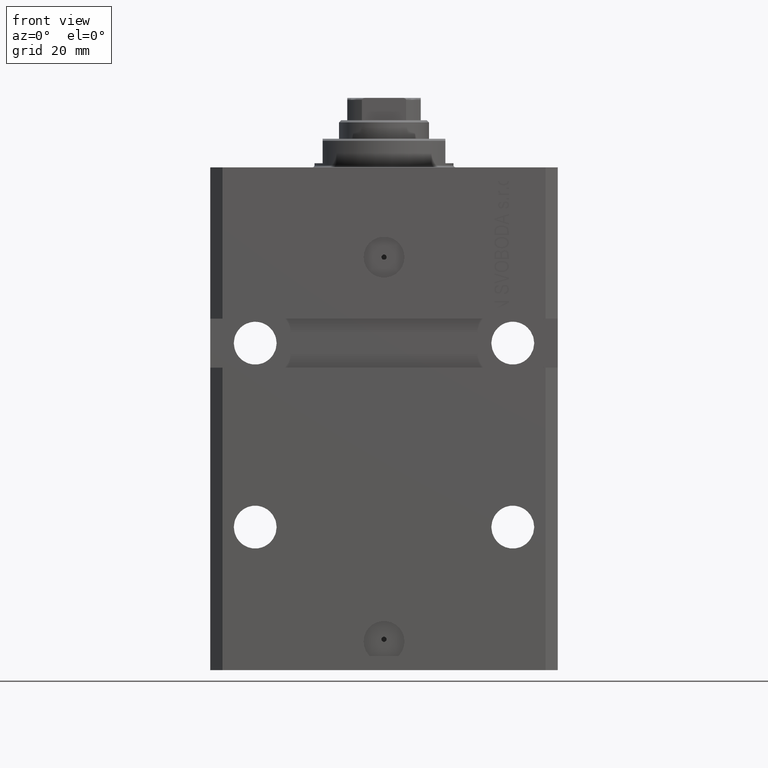
[diagram: clean part render]
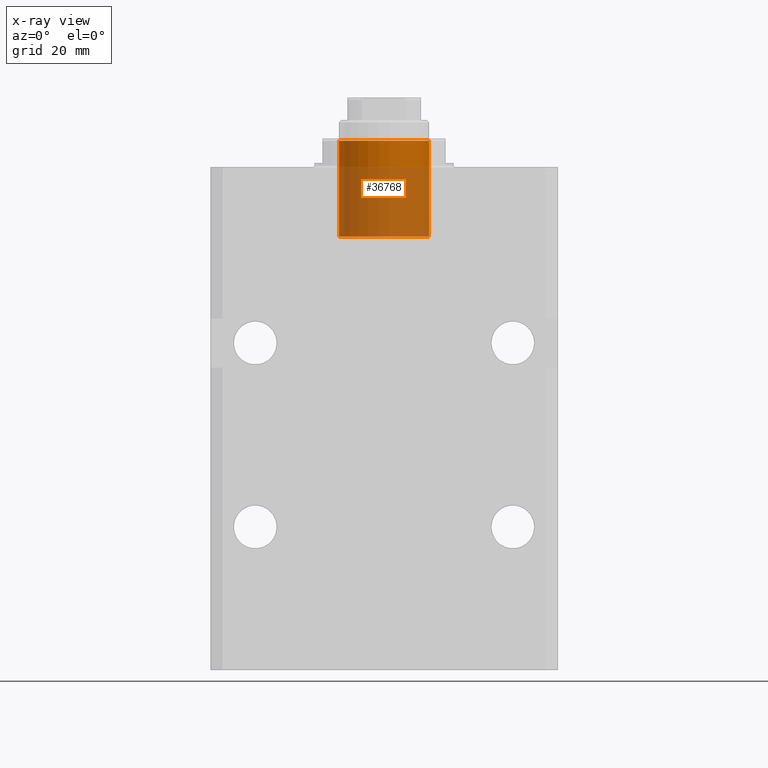
[diagram: x-ray — body ghosted, one internal face saturated and labeled with its STEP entity id]
A machine part, front view, then the same camera in x-ray: the body is ghosted and one INTERNAL B-rep face — a face not visible from any outside direction — is saturated and labeled: STEP entity #36768.
In plain terms, the highlighted cylindrical surface (partial cylindrical patch) has radius 11 mm, axis along (0, -0, 1).
Its self-contained STEP definition (entity closure, byte-faithful):
#1524 = VECTOR ( 'NONE', #33957, 1000.000000000000000 ) ;
#3463 = CARTESIAN_POINT ( 'NONE',  ( 11.00000000000000000, 1.347111479062088405E-15, 17.00000000000000000 ) ) ;
#4383 = DIRECTION ( 'NONE',  ( -1.000000000000000000, 0.000000000000000000, 0.000000000000000000 ) ) ;
#7282 = CARTESIAN_POINT ( 'NONE',  ( -11.00000000000000000, 0.000000000000000000, 17.00000000000000000 ) ) ;
#7678 = ORIENTED_EDGE ( 'NONE', *, *, #19146, .T. ) ;
#8097 = FACE_OUTER_BOUND ( 'NONE', #25258, .T. ) ;
#8790 = CARTESIAN_POINT ( 'NONE',  ( 11.00000000000000000, 1.347111479062088405E-15, -6.499999999999992006 ) ) ;
#10145 = VERTEX_POINT ( 'NONE', #7282 ) ;
#11101 = CARTESIAN_POINT ( 'NONE',  ( -11.00000000000000000, 0.000000000000000000, -6.499999999999992006 ) ) ;
#13847 = CIRCLE ( 'NONE', #26391, 11.00000000000000000 ) ;
#15251 = CARTESIAN_POINT ( 'NONE',  ( 0.000000000000000000, 0.000000000000000000, 17.00000000000000000 ) ) ;
#15718 = CIRCLE ( 'NONE', #22805, 11.00000000000000000 ) ;
#15963 = DIRECTION ( 'NONE',  ( -1.000000000000000000, 0.000000000000000000, 0.000000000000000000 ) ) ;
#16009 = VERTEX_POINT ( 'NONE', #8790 ) ;
#17090 = CARTESIAN_POINT ( 'NONE',  ( -11.00000000000000000, 0.000000000000000000, 17.00000000000000000 ) ) ;
#17621 = CARTESIAN_POINT ( 'NONE',  ( 0.000000000000000000, 0.000000000000000000, 17.00000000000000000 ) ) ;
#19146 = EDGE_CURVE ( 'NONE', #16009, #33774, #13847, .T. ) ;
#21327 = ORIENTED_EDGE ( 'NONE', *, *, #36148, .F. ) ;
#21784 = VECTOR ( 'NONE', #32109, 1000.000000000000000 ) ;
#21961 = VERTEX_POINT ( 'NONE', #24478 ) ;
#22384 = LINE ( 'NONE', #3463, #1524 ) ;
#22805 = AXIS2_PLACEMENT_3D ( 'NONE', #17621, #47399, #48131 ) ;
#23068 = DIRECTION ( 'NONE',  ( 0.000000000000000000, 0.000000000000000000, -1.000000000000000000 ) ) ;
#24478 = CARTESIAN_POINT ( 'NONE',  ( 11.00000000000000000, 1.347111479062088405E-15, 17.00000000000000000 ) ) ;
#25150 = ORIENTED_EDGE ( 'NONE', *, *, #26608, .T. ) ;
#25258 = EDGE_LOOP ( 'NONE', ( #45197, #25150, #7678, #21327 ) ) ;
#26391 = AXIS2_PLACEMENT_3D ( 'NONE', #41771, #23068, #4383 ) ;
#26608 = EDGE_CURVE ( 'NONE', #21961, #16009, #22384, .T. ) ;
#30248 = CYLINDRICAL_SURFACE ( 'NONE', #33643, 11.00000000000000000 ) ;
#32109 = DIRECTION ( 'NONE',  ( -0.000000000000000000, -0.000000000000000000, -1.000000000000000000 ) ) ;
#32348 = LINE ( 'NONE', #17090, #21784 ) ;
#33643 = AXIS2_PLACEMENT_3D ( 'NONE', #15251, #45256, #15963 ) ;
#33774 = VERTEX_POINT ( 'NONE', #11101 ) ;
#33957 = DIRECTION ( 'NONE',  ( -0.000000000000000000, -0.000000000000000000, -1.000000000000000000 ) ) ;
#36148 = EDGE_CURVE ( 'NONE', #10145, #33774, #32348, .T. ) ;
#36768 = ADVANCED_FACE ( 'NONE', ( #8097 ), #30248, .F. ) ;
#41771 = CARTESIAN_POINT ( 'NONE',  ( 0.000000000000000000, 0.000000000000000000, -6.499999999999992006 ) ) ;
#45197 = ORIENTED_EDGE ( 'NONE', *, *, #46277, .F. ) ;
#45256 = DIRECTION ( 'NONE',  ( -0.000000000000000000, -0.000000000000000000, -1.000000000000000000 ) ) ;
#46277 = EDGE_CURVE ( 'NONE', #21961, #10145, #15718, .T. ) ;
#47399 = DIRECTION ( 'NONE',  ( 0.000000000000000000, 0.000000000000000000, -1.000000000000000000 ) ) ;
#48131 = DIRECTION ( 'NONE',  ( -1.000000000000000000, 0.000000000000000000, 0.000000000000000000 ) ) ;